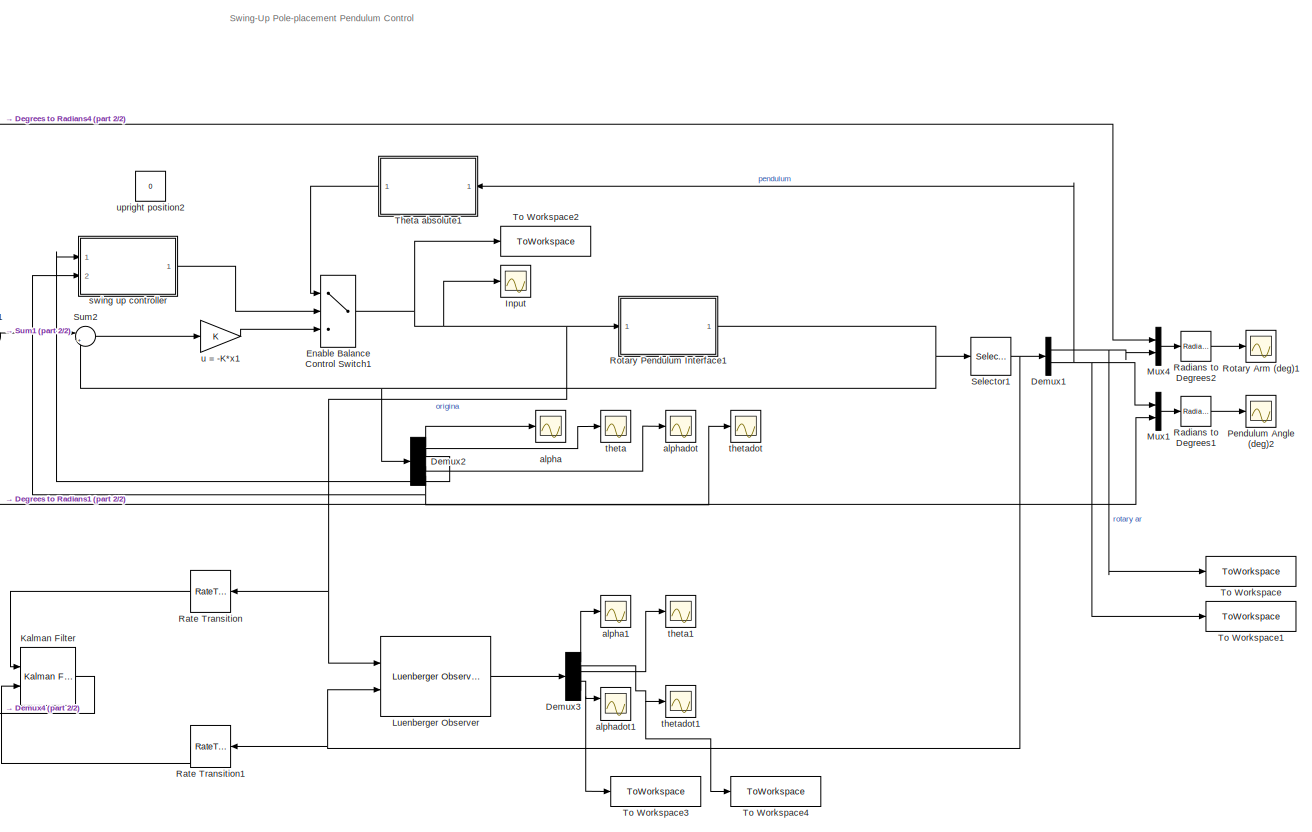
[diagram: root canvas - part 1/2, center side, full height]
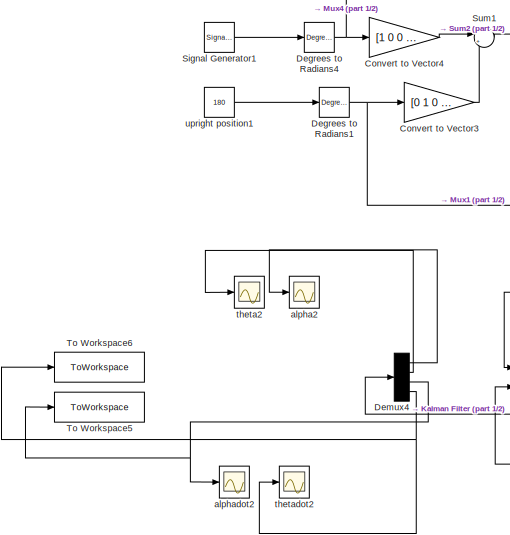
[diagram: root canvas - part 2/2, bottom left region]
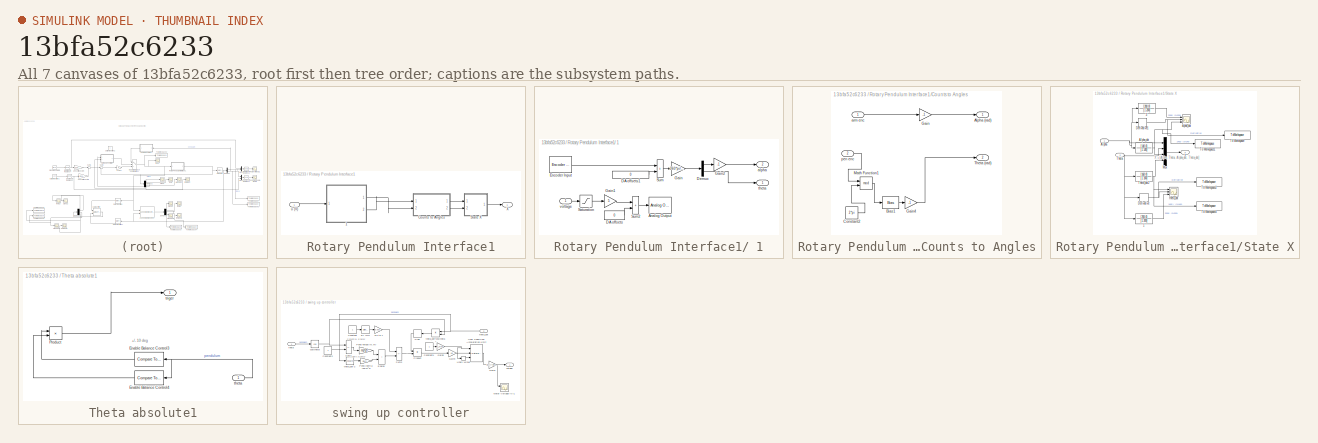
[diagram: thumbnail index - all 7 canvases of the model, root first then tree order]
MODEL slx_13bfa52c6233
KIND model
CONFIG AbsTol = auto
CONFIG EnableMultiTasking = on
CONFIG FixedStep = 0.01
CONFIG MaxStep = auto
CONFIG MinStep = auto
CONFIG RelTol = 1e-3
CONFIG SampleTimeConstraint = Unconstrained
CONFIG SolverName = ode1
CONFIG StartTime = 0.0
CONFIG StopTime = 40
BLOCK [Gain] Convert to Vector3
  Gain = [0 1 0 0]
BLOCK [Gain] Convert to Vector4
  Gain = [1 0 0 0]
BLOCK [Reference] Degrees to Radians1  REF=simulink_extras/Transformations/Degrees to
Radians
  Ports = [1, 1]
  SourceBlock = simulink_extras/Transformations/Degrees to\nRadians
  SourceProductBaseCode = SL
  SourceType = DegreesToRadians
BLOCK [Reference] Degrees to Radians4  REF=simulink_extras/Transformations/Degrees to
Radians
  Ports = [1, 1]
  SourceBlock = simulink_extras/Transformations/Degrees to\nRadians
  SourceProductBaseCode = SL
  SourceType = DegreesToRadians
BLOCK [Demux] Demux1
  Outputs = 2
  Ports = [1, 2]
BLOCK [Demux] Demux2
  Ports = [1, 4]
BLOCK [Demux] Demux3
  Ports = [1, 4]
BLOCK [Demux] Demux4
  Ports = [1, 4]
BLOCK [MultiPortSwitch] Enable Balance Control Switch1
  DataPortOrder = Zero-based contiguous
  InputSameDT = off
  Inputs = 2
  Ports = [3, 1]
  SaturateOnIntegerOverflow = off
  zeroidx = on
BLOCK [Scope] Input 
  Floating = off
  NumInputPorts = 1
  Ports = [1]
  ScopeSpecificationString = Simulink.scopes.TimeScopeBlockCfg('CurrentConfiguration', extmgr.ConfigurationSet(extmgr.Configuration('Core','General UI',true),extmgr.Configuration('Core','Source UI',true),extmgr.Configuration('Sources','WiredSimulink',true,'DataLoggingVariableName','ScopeData1'),extmgr.Configuration('Visuals','Time Domain',true,'SerializedDisplays',{struct('MinYLimReal','-2.19929','MaxYLimReal','3.16032','YLab...<+1500ch>
BLOCK [Reference] Kalman Filter  REF=ctrlSharedLib/Kalman Filter
  Ports = [2, 1]
  SourceBlock = ctrlSharedLib/Kalman Filter
  SourceProductBaseCode = CT,ID
  SourceType = ctrlKalmanFilter
BLOCK [Reference] Luenberger Observer  REF=eeLuenbergerObserver/Luenberger Observer
  Ports = [2, 1]
  SourceBlock = eeLuenbergerObserver/Luenberger Observer
  SourceProductBaseCode = PS
  SourceType = Luenberger Observer
BLOCK [Mux] Mux1
  DisplayOption = bar
  Inputs = 2
  Ports = [2, 1]
BLOCK [Mux] Mux4
  DisplayOption = bar
  Inputs = 2
  Ports = [2, 1]
BLOCK [Scope] Pendulum Angle (deg)2
  Floating = off
  NumInputPorts = 1
  Ports = [1]
  ScopeSpecificationString = Simulink.scopes.TimeScopeBlockCfg('CurrentConfiguration', extmgr.ConfigurationSet(extmgr.Configuration('Core','General UI',true),extmgr.Configuration('Core','Source UI',true),extmgr.Configuration('Sources','WiredSimulink',true,'DataLoggingVariableName','ScopeData3'),extmgr.Configuration('Visuals','Time Domain',true,'SerializedDisplays',{struct('MinYLimReal','-40.60547','MaxYLimReal','404.12109','Y...<+1500ch>
BLOCK [Reference] Radians to Degrees1  REF=simulink_extras/Transformations/Radians
to Degrees
  Ports = [1, 1]
  SourceBlock = simulink_extras/Transformations/Radians\nto Degrees
  SourceProductBaseCode = SL
  SourceType = RadiansToDegrees
BLOCK [Reference] Radians to Degrees2  REF=simulink_extras/Transformations/Radians
to Degrees
  Ports = [1, 1]
  SourceBlock = simulink_extras/Transformations/Radians\nto Degrees
  SourceProductBaseCode = SL
  SourceType = RadiansToDegrees
BLOCK [RateTransition] Rate Transition
BLOCK [RateTransition] Rate Transition1
BLOCK [Scope] Rotary Arm (deg)1
  Floating = off
  NumInputPorts = 1
  Ports = [1]
  ScopeSpecificationString = Simulink.scopes.TimeScopeBlockCfg('CurrentConfiguration', extmgr.ConfigurationSet(extmgr.Configuration('Core','General UI',true),extmgr.Configuration('Core','Source UI',true),extmgr.Configuration('Sources','WiredSimulink',true,'DataLoggingVariableName','ScopeData4'),extmgr.Configuration('Visuals','Time Domain',true,'SerializedDisplays',{struct('MinYLimReal','-49.43115','MaxYLimReal','38.82568','YL...<+1575ch>
BLOCK [SubSystem] Rotary Pendulum Interface1
  Ports = [1, 1]
  RequestExecContextInheritance = off
BLOCK [SubSystem] Rotary Pendulum Interface1/ 1
  InitFcn = hwinit
  LoadFcn = hwinit
  NameLocation = top
  Ports = [1, 2]
  RequestExecContextInheritance = off
  ShowPortLabels = none
BLOCK [Reference] Rotary Pendulum Interface1/ 1/Analog Output  REF=sldrtlib/Analog Output
  AttributesFormatString = Humusoft\nMF634 [auto]
  Ports = [1]
  SourceBlock = sldrtlib/Analog Output
  SourceProductBaseCode = WT
  SourceType = Simulink Desktop Real-Time Analog Output
BLOCK [Constant] Rotary Pendulum Interface1/ 1/DA offsets
  Value = 0
BLOCK [Constant] Rotary Pendulum Interface1/ 1/DA offsets1
  SampleTime = h
  Value = 0
BLOCK [Demux] Rotary Pendulum Interface1/ 1/Demux
  Outputs = 2
  Ports = [1, 2]
BLOCK [Reference] Rotary Pendulum Interface1/ 1/Encoder Input  REF=sldrtlib/Encoder Input
  AttributesFormatString = Humusoft\nMF634 [auto]
  Ports = [0, 1]
  SourceBlock = sldrtlib/Encoder Input
  SourceProductBaseCode = WT
  SourceType = Simulink Desktop Real-Time Encoder Input
BLOCK [Gain] Rotary Pendulum Interface1/ 1/Gain
  Gain = 360*pi/(180*512*4)
  OutDataTypeStr = Inherit: Same as input
  ParamDataTypeStr = Inherit: Same as input
  SaturateOnIntegerOverflow = on
BLOCK [Gain] Rotary Pendulum Interface1/ 1/Gain1
  Gain = 5
  OutDataTypeStr = Inherit: Same as input
  ParamDataTypeStr = Inherit: Same as input
  SaturateOnIntegerOverflow = on
BLOCK [Gain] Rotary Pendulum Interface1/ 1/Gain2
  Gain = -1
  OutDataTypeStr = Inherit: Same as input
  ParamDataTypeStr = Inherit: Same as input
  SaturateOnIntegerOverflow = on
BLOCK [Saturate] Rotary Pendulum Interface1/ 1/Saturation
  LowerLimit = -1
  UpperLimit = 1
BLOCK [Sum] Rotary Pendulum Interface1/ 1/Sum
  IconShape = rectangular
  InputSameDT = on
  OutDataTypeStr = Inherit: Same as first input
  Ports = [2, 1]
  SaturateOnIntegerOverflow = on
BLOCK [Sum] Rotary Pendulum Interface1/ 1/Sum2
  IconShape = rectangular
  InputSameDT = on
  OutDataTypeStr = Inherit: Same as first input
  Ports = [2, 1]
  SaturateOnIntegerOverflow = on
BLOCK [Outport] Rotary Pendulum Interface1/ 1/alpha
  Port = 2
  Tag = Cable length
BLOCK [Outport] Rotary Pendulum Interface1/ 1/theta
  Tag = Cable length
BLOCK [Inport] Rotary Pendulum Interface1/ 1/voltage
BLOCK [SubSystem] Rotary Pendulum Interface1/Counts to Angles
  Ports = [2, 2]
  RequestExecContextInheritance = off
BLOCK [Outport] Rotary Pendulum Interface1/Counts to Angles/Alpha (rad)
  VectorParamsAs1DForOutWhenUnconnected = off
BLOCK [Bias] Rotary Pendulum Interface1/Counts to Angles/Bias1
  Bias = -2*pi
  SaturateOnIntegerOverflow = off
BLOCK [Constant] Rotary Pendulum Interface1/Counts to Angles/Constant2
  Value = 2*pi
BLOCK [Gain] Rotary Pendulum Interface1/Counts to Angles/Gain
  Gain = -1
BLOCK [Gain] Rotary Pendulum Interface1/Counts to Angles/Gain4
  Gain = -1
BLOCK [Math] Rotary Pendulum Interface1/Counts to Angles/Math Function1
  Operator = mod
  Ports = [2, 1]
  SignedPower = on
BLOCK [Outport] Rotary Pendulum Interface1/Counts to Angles/Theta (rad)
  Port = 2
  VectorParamsAs1DForOutWhenUnconnected = off
BLOCK [Inport] Rotary Pendulum Interface1/Counts to Angles/arm enc
BLOCK [Inport] Rotary Pendulum Interface1/Counts to Angles/pen enc
  Port = 2
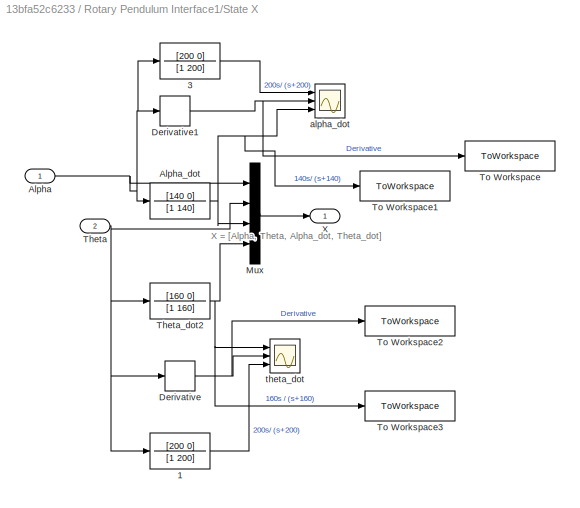
BLOCK [SubSystem] Rotary Pendulum Interface1/State X
  Ports = [2, 1]
  RequestExecContextInheritance = off
BLOCK [TransferFcn] Rotary Pendulum Interface1/State X/1
  Denominator = [1 200]
  Numerator = [200 0]
BLOCK [TransferFcn] Rotary Pendulum Interface1/State X/3
  Denominator = [1 200]
  Numerator = [200 0]
BLOCK [Inport] Rotary Pendulum Interface1/State X/Alpha
BLOCK [TransferFcn] Rotary Pendulum Interface1/State X/Alpha_dot
  Denominator = [1 140]
  Numerator = [140 0]
BLOCK [Derivative] Rotary Pendulum Interface1/State X/Derivative
BLOCK [Derivative] Rotary Pendulum Interface1/State X/Derivative1
BLOCK [Mux] Rotary Pendulum Interface1/State X/Mux
  DisplayOption = bar
  Ports = [4, 1]
BLOCK [Inport] Rotary Pendulum Interface1/State X/Theta
  Port = 2
BLOCK [TransferFcn] Rotary Pendulum Interface1/State X/Theta_dot2
  Denominator = [1 160]
  Numerator = [160 0]
BLOCK [ToWorkspace] Rotary Pendulum Interface1/State X/To Workspace
  Decimation = 2
  FixptAsFi = on
  MaxDataPoints = inf
  Ports = [1]
  SampleTime = h
  SaveFormat = Timeseries
  VariableName = derivative
BLOCK [ToWorkspace] Rotary Pendulum Interface1/State X/To Workspace1
  Decimation = 2
  FixptAsFi = on
  MaxDataPoints = inf
  Ports = [1]
  SampleTime = h
  SaveFormat = Timeseries
  VariableName = alpha140
BLOCK [ToWorkspace] Rotary Pendulum Interface1/State X/To Workspace2
  Decimation = 2
  FixptAsFi = on
  MaxDataPoints = inf
  Ports = [1]
  SampleTime = h
  SaveFormat = Timeseries
  VariableName = thetaderivative
BLOCK [ToWorkspace] Rotary Pendulum Interface1/State X/To Workspace3
  Decimation = 2
  FixptAsFi = on
  MaxDataPoints = inf
  Ports = [1]
  SampleTime = h
  SaveFormat = Timeseries
  VariableName = theta160
BLOCK [Outport] Rotary Pendulum Interface1/State X/X
  VectorParamsAs1DForOutWhenUnconnected = off
BLOCK [Scope] Rotary Pendulum Interface1/State X/alpha_dot
  Floating = off
  NumInputPorts = 3
  Ports = [3]
  ScopeSpecificationString = Simulink.scopes.TimeScopeBlockCfg('CurrentConfiguration', extmgr.ConfigurationSet(extmgr.Configuration('Core','General UI',true),extmgr.Configuration('Core','Source UI',true),extmgr.Configuration('Sources','WiredSimulink',true,'DataLoggingVariableName','ScopeData2'),extmgr.Configuration('Visuals','Time Domain',true,'SerializedDisplays',{struct('MinYLimReal','-1.32082','MaxYLimReal','0.63373','YLab...<+1514ch>
BLOCK [Scope] Rotary Pendulum Interface1/State X/theta_dot
  Floating = off
  NumInputPorts = 3
  Ports = [3]
  ScopeSpecificationString = Simulink.scopes.TimeScopeBlockCfg('CurrentConfiguration', extmgr.ConfigurationSet(extmgr.Configuration('Core','General UI',true),extmgr.Configuration('Core','Source UI',true),extmgr.Configuration('Sources','WiredSimulink',true,'DataLoggingVariableName','ScopeData1'),extmgr.Configuration('Visuals','Time Domain',true,'SerializedDisplays',{struct('MinYLimReal','-1571.48662','MaxYLimReal','1570.87303'...<+1537ch>
BLOCK [Outport] Rotary Pendulum Interface1/X
  VectorParamsAs1DForOutWhenUnconnected = off
BLOCK [Inport] Rotary Pendulum Interface1/u (V)
BLOCK [Selector] Selector1
  IndexOptions = Index vector (dialog)
  Indices = [1 2]
  InputPortWidth = 4
  OutputSizes = 1
  Ports = [1, 1]
BLOCK [SignalGenerator] Signal Generator1
  Amplitude = 20
  Frequency = 0.5
  Ports = [0, 1]
  Units = rad/sec
  WaveForm = square
BLOCK [Sum] Sum1
  Inputs = |++
  Ports = [2, 1]
BLOCK [Sum] Sum2
  Inputs = |+-
  Ports = [2, 1]
BLOCK [SubSystem] Theta absolute1
  Ports = [1, 1]
  RequestExecContextInheritance = off
BLOCK [Reference] Theta absolute1/Enable Balance Control3  REF=simulink/Logic and Bit
Operations/Compare
To Constant
  Ports = [1, 1]
  SourceBlock = simulink/Logic and Bit\nOperations/Compare\nTo Constant
  SourceProductBaseCode = SL
  SourceType = Compare To Constant
BLOCK [Reference] Theta absolute1/Enable Balance Control4  REF=simulink/Logic and Bit
Operations/Compare
To Constant
  Ports = [1, 1]
  SourceBlock = simulink/Logic and Bit\nOperations/Compare\nTo Constant
  SourceProductBaseCode = SL
  SourceType = Compare To Constant
BLOCK [Product] Theta absolute1/Product
  Ports = [2, 1]
BLOCK [Inport] Theta absolute1/theta
BLOCK [Outport] Theta absolute1/triger
  VectorParamsAs1DForOutWhenUnconnected = off
BLOCK [ToWorkspace] To Workspace
  Decimation = 2
  FixptAsFi = on
  MaxDataPoints = inf
  Ports = [1]
  SampleTime = h
  SaveFormat = Timeseries
  VariableName = alphadata
BLOCK [ToWorkspace] To Workspace1
  Decimation = 2
  FixptAsFi = on
  MaxDataPoints = inf
  Ports = [1]
  SampleTime = h
  SaveFormat = Timeseries
  VariableName = thetadata
BLOCK [ToWorkspace] To Workspace2
  Decimation = 2
  FixptAsFi = on
  MaxDataPoints = inf
  Ports = [1]
  SampleTime = h
  SaveFormat = Timeseries
  VariableName = input
BLOCK [ToWorkspace] To Workspace3
  Decimation = 2
  FixptAsFi = on
  MaxDataPoints = inf
  Ports = [1]
  SampleTime = h
  SaveFormat = Timeseries
  VariableName = luenalpha
BLOCK [ToWorkspace] To Workspace4
  Decimation = 2
  FixptAsFi = on
  MaxDataPoints = inf
  Ports = [1]
  SampleTime = h
  SaveFormat = Timeseries
  VariableName = luentheta
BLOCK [ToWorkspace] To Workspace5
  Decimation = 2
  FixptAsFi = on
  MaxDataPoints = inf
  Ports = [1]
  SampleTime = h
  SaveFormat = Timeseries
  VariableName = kalmanalpha
BLOCK [ToWorkspace] To Workspace6
  Decimation = 2
  FixptAsFi = on
  MaxDataPoints = inf
  Ports = [1]
  SampleTime = h
  SaveFormat = Timeseries
  VariableName = kalmantheta
BLOCK [Scope] alpha
  Floating = off
  NumInputPorts = 1
  Ports = [1]
  ScopeSpecificationString = Simulink.scopes.TimeScopeBlockCfg('CurrentConfiguration', extmgr.ConfigurationSet(extmgr.Configuration('Core','General UI',true),extmgr.Configuration('Core','Source UI',true),extmgr.Configuration('Sources','WiredSimulink',true,'DataLoggingVariableName','ScopeData6'),extmgr.Configuration('Visuals','Time Domain',true,'SerializedDisplays',{struct('MinYLimReal','-2.68447','MaxYLimReal','3.26738','YLab...<+1499ch>
BLOCK [Scope] alpha1
  Floating = off
  NumInputPorts = 1
  Ports = [1]
  ScopeSpecificationString = Simulink.scopes.TimeScopeBlockCfg('CurrentConfiguration', extmgr.ConfigurationSet(extmgr.Configuration('Core','General UI',true),extmgr.Configuration('Core','Source UI',true),extmgr.Configuration('Sources','WiredSimulink',true,'DataLoggingVariableName','ScopeData1'),extmgr.Configuration('Visuals','Time Domain',true,'SerializedDisplays',{struct('MinYLimReal','-2.68447','MaxYLimReal','3.26738','YLab...<+1499ch>
BLOCK [Scope] alpha2
  Floating = off
  NumInputPorts = 1
  Ports = [1]
  ScopeSpecificationString = Simulink.scopes.TimeScopeBlockCfg('CurrentConfiguration', extmgr.ConfigurationSet(extmgr.Configuration('Core','General UI',true),extmgr.Configuration('Core','Source UI',true),extmgr.Configuration('Sources','WiredSimulink',true,'DataLoggingVariableName','ScopeData5'),extmgr.Configuration('Visuals','Time Domain',true,'SerializedDisplays',{struct('MinYLimReal','-2.68447','MaxYLimReal','3.26738','YLab...<+1499ch>
BLOCK [Scope] alphadot
  Floating = off
  NumInputPorts = 1
  Ports = [1]
  ScopeSpecificationString = Simulink.scopes.TimeScopeBlockCfg('CurrentConfiguration', extmgr.ConfigurationSet(extmgr.Configuration('Core','General UI',true),extmgr.Configuration('Core','Source UI',true),extmgr.Configuration('Sources','WiredSimulink',true,'DataLoggingVariableName','ScopeData7'),extmgr.Configuration('Visuals','Time Domain',true,'SerializedDisplays',{struct('MinYLimReal','-1.71372','MaxYLimReal','1.12685','YLab...<+1499ch>
BLOCK [Scope] alphadot1
  Floating = off
  NumInputPorts = 2
  Ports = [2]
  ScopeSpecificationString = Simulink.scopes.TimeScopeBlockCfg('CurrentConfiguration', extmgr.ConfigurationSet(extmgr.Configuration('Core','General UI',true),extmgr.Configuration('Core','Source UI',true),extmgr.Configuration('Sources','WiredSimulink',true,'DataLoggingVariableName','ScopeData2'),extmgr.Configuration('Visuals','Time Domain',true,'SerializedDisplays',{struct('MinYLimReal','-1.71372','MaxYLimReal','1.12685','YLab...<+1499ch>
BLOCK [Scope] alphadot2
  Floating = off
  NumInputPorts = 1
  Ports = [1]
  ScopeSpecificationString = Simulink.scopes.TimeScopeBlockCfg('CurrentConfiguration', extmgr.ConfigurationSet(extmgr.Configuration('Core','General UI',true),extmgr.Configuration('Core','Source UI',true),extmgr.Configuration('Sources','WiredSimulink',true,'DataLoggingVariableName','ScopeData6'),extmgr.Configuration('Visuals','Time Domain',true,'SerializedDisplays',{struct('MinYLimReal','-1.71372','MaxYLimReal','1.12685','YLab...<+1499ch>
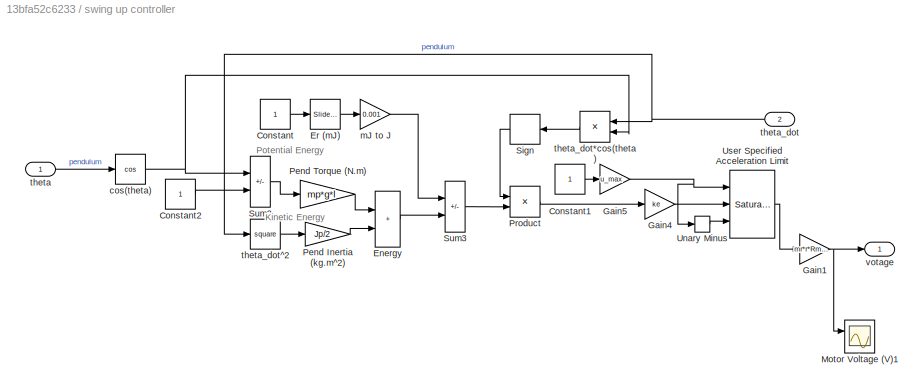
BLOCK [SubSystem] swing up controller
  Ports = [2, 1]
  RequestExecContextInheritance = off
BLOCK [Constant] swing up controller/Constant
BLOCK [Constant] swing up controller/Constant1
BLOCK [Constant] swing up controller/Constant2
BLOCK [Sum] swing up controller/Energy
  IconShape = rectangular
  Ports = [2, 1]
  SaturateOnIntegerOverflow = on
BLOCK [Reference] swing up controller/Er (mJ)  REF=simulink/Math
Operations/Slider
Gain
  Ports = [1, 1]
  SourceBlock = simulink/Math\nOperations/Slider\nGain
  SourceProductBaseCode = SL
  SourceType = Slider Gain
BLOCK [Gain] swing up controller/Gain1
  Gain = mr*r*Rm/kt
BLOCK [Gain] swing up controller/Gain4
  Gain = ke
BLOCK [Gain] swing up controller/Gain5
  Gain = u_max
BLOCK [Scope] swing up controller/Motor Voltage (V)1
  Floating = off
  NumInputPorts = 2
  Ports = [2]
  ScopeSpecificationString = Simulink.scopes.TimeScopeBlockCfg('CurrentConfiguration', extmgr.ConfigurationSet(extmgr.Configuration('Core','General UI',true),extmgr.Configuration('Core','Source UI',true),extmgr.Configuration('Sources','WiredSimulink',true,'DataLoggingSaveFormat','StructureWithTime','DataLoggingLimitDataPoints',true,'DataLoggingDecimation','1','DataLoggingDecimateData',true,'DataLoggingVariableName','ScopeData...<+1823ch>
BLOCK [Gain] swing up controller/Pend Inertia (kg.m^2)
  Gain = Jp/2
BLOCK [Gain] swing up controller/Pend Torque (N.m)
  Gain = mp*g*l
BLOCK [Product] swing up controller/Product
  Ports = [2, 1]
  RndMeth = Zero
BLOCK [Signum] swing up controller/Sign
BLOCK [Sum] swing up controller/Sum2
  IconShape = rectangular
  Inputs = -+
  Ports = [2, 1]
  SaturateOnIntegerOverflow = on
BLOCK [Sum] swing up controller/Sum3
  IconShape = rectangular
  Inputs = +-
  Ports = [2, 1]
  SaturateOnIntegerOverflow = on
BLOCK [UnaryMinus] swing up controller/Unary Minus
BLOCK [Reference] swing up controller/User Specified Acceleration Limit  REF=simulink/Discontinuities/Saturation
Dynamic
  Ports = [3, 1]
  SourceBlock = simulink/Discontinuities/Saturation\nDynamic
  SourceProductBaseCode = SL
  SourceType = Saturation Dynamic
BLOCK [Trigonometry] swing up controller/cos(theta)
  Operator = cos
  Ports = [1, 1]
BLOCK [Gain] swing up controller/mJ to J
  Gain = 0.001
BLOCK [Inport] swing up controller/theta
BLOCK [Inport] swing up controller/theta_dot
  Port = 2
BLOCK [Product] swing up controller/theta_dot*cos(theta)
  Ports = [2, 1]
  RndMeth = Zero
BLOCK [Math] swing up controller/theta_dot^2
  Operator = square
  Ports = [1, 1]
  SignedPower = on
BLOCK [Outport] swing up controller/votage
  VectorParamsAs1DForOutWhenUnconnected = off
BLOCK [Scope] theta
  Floating = off
  NumInputPorts = 1
  Ports = [1]
  ScopeSpecificationString = Simulink.scopes.TimeScopeBlockCfg('CurrentConfiguration', extmgr.ConfigurationSet(extmgr.Configuration('Core','General UI',true),extmgr.Configuration('Core','Source UI',true),extmgr.Configuration('Sources','WiredSimulink',true,'DataLoggingVariableName','ScopeData8'),extmgr.Configuration('Visuals','Time Domain',true,'SerializedDisplays',{struct('MinYLimReal','-0.78195','MaxYLimReal','7.0682','YLabe...<+1495ch>
BLOCK [Scope] theta1
  Floating = off
  NumInputPorts = 1
  Ports = [1]
  ScopeSpecificationString = Simulink.scopes.TimeScopeBlockCfg('CurrentConfiguration', extmgr.ConfigurationSet(extmgr.Configuration('Core','General UI',true),extmgr.Configuration('Core','Source UI',true),extmgr.Configuration('Sources','WiredSimulink',true,'DataLoggingVariableName','ScopeData3'),extmgr.Configuration('Visuals','Time Domain',true,'SerializedDisplays',{struct('MinYLimReal','-0.78195','MaxYLimReal','7.0682','YLabe...<+1495ch>
BLOCK [Scope] theta2
  Floating = off
  NumInputPorts = 1
  Ports = [1]
  ScopeSpecificationString = Simulink.scopes.TimeScopeBlockCfg('CurrentConfiguration', extmgr.ConfigurationSet(extmgr.Configuration('Core','General UI',true),extmgr.Configuration('Core','Source UI',true),extmgr.Configuration('Sources','WiredSimulink',true,'DataLoggingVariableName','ScopeData7'),extmgr.Configuration('Visuals','Time Domain',true,'SerializedDisplays',{struct('MinYLimReal','-0.78195','MaxYLimReal','7.0682','YLabe...<+1495ch>
BLOCK [Scope] thetadot
  Floating = off
  NumInputPorts = 1
  Ports = [1]
  ScopeSpecificationString = Simulink.scopes.TimeScopeBlockCfg('CurrentConfiguration', extmgr.ConfigurationSet(extmgr.Configuration('Core','General UI',true),extmgr.Configuration('Core','Source UI',true),extmgr.Configuration('Sources','WiredSimulink',true,'DataLoggingVariableName','ScopeData9'),extmgr.Configuration('Visuals','Time Domain',true,'SerializedDisplays',{struct('MinYLimReal','-0.7854','MaxYLimReal','7.06858','YLabe...<+1497ch>
BLOCK [Scope] thetadot1
  Floating = off
  NumInputPorts = 1
  Ports = [1]
  ScopeSpecificationString = Simulink.scopes.TimeScopeBlockCfg('CurrentConfiguration', extmgr.ConfigurationSet(extmgr.Configuration('Core','General UI',true),extmgr.Configuration('Core','Source UI',true),extmgr.Configuration('Sources','WiredSimulink',true,'DataLoggingVariableName','ScopeData4'),extmgr.Configuration('Visuals','Time Domain',true,'SerializedDisplays',{struct('MinYLimReal','-0.7854','MaxYLimReal','7.06858','YLabe...<+1497ch>
BLOCK [Scope] thetadot2
  Floating = off
  NumInputPorts = 1
  Ports = [1]
  ScopeSpecificationString = Simulink.scopes.TimeScopeBlockCfg('CurrentConfiguration', extmgr.ConfigurationSet(extmgr.Configuration('Core','General UI',true),extmgr.Configuration('Core','Source UI',true),extmgr.Configuration('Sources','WiredSimulink',true,'DataLoggingVariableName','ScopeData8'),extmgr.Configuration('Visuals','Time Domain',true,'SerializedDisplays',{struct('MinYLimReal','-0.7854','MaxYLimReal','7.06858','YLabe...<+1497ch>
BLOCK [Gain] u = -K*x1
  Gain = K
  Multiplication = Matrix(K*u)
BLOCK [Constant] upright position1
  SampleTime = 0
  Value = 180
BLOCK [Constant] upright position2
  SampleTime = 0
  Value = 0
ANNOTATION (root): Swing-Up Pole-placement Pendulum Control
ANNOTATION Rotary Pendulum Interface1/State X: X = [Alpha, Theta, Alpha_dot, Theta_dot]
ANNOTATION Theta absolute1: +/- 10 deg
ANNOTATION swing up controller: Kinetic Energy
ANNOTATION swing up controller: Potential Energy
LINE Convert to Vector3:1 -> Sum1:2
LINE Convert to Vector4:1 -> Sum1:1
NET Degrees to Radians1:1 -> Convert to Vector3:1, Mux1:2
NET Degrees to Radians4:1 -> Convert to Vector4:1, Mux4:1
NET Demux1:1 -> Mux4:2, To Workspace:1
NET Demux1:2 -> Mux1:1, Theta absolute1:1, To Workspace1:1
LINE Demux2:1 -> alpha:1
NET Demux2:2 -> swing up controller:1, theta:1
LINE Demux2:3 -> alphadot:1
NET Demux2:4 -> swing up controller:2, thetadot:1
LINE Demux3:1 -> alpha1:1
LINE Demux3:2 -> theta1:1
NET Demux3:3 -> To Workspace3:1, alphadot1:1
NET Demux3:4 -> To Workspace4:1, thetadot1:1
LINE Demux4:1 -> alpha2:1
LINE Demux4:2 -> theta2:1
NET Demux4:3 -> To Workspace5:1, alphadot2:1
NET Demux4:4 -> To Workspace6:1, thetadot2:1
NET Enable Balance Control Switch1:1 -> Input :1, Luenberger Observer:1, Rate Transition:1, Rotary Pendulum Interface1:1, To Workspace2:1
LINE Kalman Filter:1 -> Demux4:1
LINE Luenberger Observer:1 -> Demux3:1
LINE Mux1:1 -> Radians to Degrees1:1
LINE Mux4:1 -> Radians to Degrees2:1
LINE Radians to Degrees1:1 -> Pendulum Angle (deg)2:1
LINE Radians to Degrees2:1 -> Rotary Arm (deg)1:1
LINE Rate Transition1:1 -> Kalman Filter:2
LINE Rate Transition:1 -> Kalman Filter:1
LINE Rotary Pendulum Interface1/ 1/DA offsets1:1 -> Rotary Pendulum Interface1/ 1/Sum:2
LINE Rotary Pendulum Interface1/ 1/DA offsets:1 -> Rotary Pendulum Interface1/ 1/Sum2:2
LINE Rotary Pendulum Interface1/ 1/Demux:1 -> Rotary Pendulum Interface1/ 1/Gain2:1
LINE Rotary Pendulum Interface1/ 1/Demux:2 -> Rotary Pendulum Interface1/ 1/theta:1
LINE Rotary Pendulum Interface1/ 1/Encoder Input:1 -> Rotary Pendulum Interface1/ 1/Sum:1
LINE Rotary Pendulum Interface1/ 1/Gain1:1 -> Rotary Pendulum Interface1/ 1/Sum2:1
LINE Rotary Pendulum Interface1/ 1/Gain2:1 -> Rotary Pendulum Interface1/ 1/alpha:1
LINE Rotary Pendulum Interface1/ 1/Gain:1 -> Rotary Pendulum Interface1/ 1/Demux:1
LINE Rotary Pendulum Interface1/ 1/Saturation:1 -> Rotary Pendulum Interface1/ 1/Gain1:1
LINE Rotary Pendulum Interface1/ 1/Sum2:1 -> Rotary Pendulum Interface1/ 1/Analog Output:1
LINE Rotary Pendulum Interface1/ 1/Sum:1 -> Rotary Pendulum Interface1/ 1/Gain:1
LINE Rotary Pendulum Interface1/ 1/voltage:1 -> Rotary Pendulum Interface1/ 1/Saturation:1
LINE Rotary Pendulum Interface1/ 1:1 -> Rotary Pendulum Interface1/Counts to Angles:2
LINE Rotary Pendulum Interface1/ 1:2 -> Rotary Pendulum Interface1/Counts to Angles:1
LINE Rotary Pendulum Interface1/Counts to Angles/Bias1:1 -> Rotary Pendulum Interface1/Counts to Angles/Gain4:1
LINE Rotary Pendulum Interface1/Counts to Angles/Constant2:1 -> Rotary Pendulum Interface1/Counts to Angles/Math Function1:2
LINE Rotary Pendulum Interface1/Counts to Angles/Gain4:1 -> Rotary Pendulum Interface1/Counts to Angles/Theta (rad):1
LINE Rotary Pendulum Interface1/Counts to Angles/Gain:1 -> Rotary Pendulum Interface1/Counts to Angles/Alpha (rad):1
LINE Rotary Pendulum Interface1/Counts to Angles/Math Function1:1 -> Rotary Pendulum Interface1/Counts to Angles/Bias1:1
LINE Rotary Pendulum Interface1/Counts to Angles/arm enc:1 -> Rotary Pendulum Interface1/Counts to Angles/Gain:1
LINE Rotary Pendulum Interface1/Counts to Angles/pen enc:1 -> Rotary Pendulum Interface1/Counts to Angles/Math Function1:1
LINE Rotary Pendulum Interface1/Counts to Angles:1 -> Rotary Pendulum Interface1/State X:1
LINE Rotary Pendulum Interface1/Counts to Angles:2 -> Rotary Pendulum Interface1/State X:2
LINE Rotary Pendulum Interface1/State X/1:1 -> Rotary Pendulum Interface1/State X/theta_dot:3
LINE Rotary Pendulum Interface1/State X/3:1 -> Rotary Pendulum Interface1/State X/alpha_dot:1
NET Rotary Pendulum Interface1/State X/Alpha:1 -> Rotary Pendulum Interface1/State X/3:1, Rotary Pendulum Interface1/State X/Alpha_dot:1, Rotary Pendulum Interface1/State X/Derivative1:1, Rotary Pendulum Interface1/State X/Mux:1
NET Rotary Pendulum Interface1/State X/Alpha_dot:1 -> Rotary Pendulum Interface1/State X/Mux:3, Rotary Pendulum Interface1/State X/To Workspace1:1, Rotary Pendulum Interface1/State X/alpha_dot:3
NET Rotary Pendulum Interface1/State X/Derivative1:1 -> Rotary Pendulum Interface1/State X/To Workspace:1, Rotary Pendulum Interface1/State X/alpha_dot:2
NET Rotary Pendulum Interface1/State X/Derivative:1 -> Rotary Pendulum Interface1/State X/To Workspace2:1, Rotary Pendulum Interface1/State X/theta_dot:2
LINE Rotary Pendulum Interface1/State X/Mux:1 -> Rotary Pendulum Interface1/State X/X:1
NET Rotary Pendulum Interface1/State X/Theta:1 -> Rotary Pendulum Interface1/State X/1:1, Rotary Pendulum Interface1/State X/Derivative:1, Rotary Pendulum Interface1/State X/Mux:2, Rotary Pendulum Interface1/State X/Theta_dot2:1
NET Rotary Pendulum Interface1/State X/Theta_dot2:1 -> Rotary Pendulum Interface1/State X/Mux:4, Rotary Pendulum Interface1/State X/To Workspace3:1, Rotary Pendulum Interface1/State X/theta_dot:1
LINE Rotary Pendulum Interface1/State X:1 -> Rotary Pendulum Interface1/X:1
LINE Rotary Pendulum Interface1/u (V):1 -> Rotary Pendulum Interface1/ 1:1
NET Rotary Pendulum Interface1:1 -> Demux2:1, Selector1:1, Sum2:2
NET Selector1:1 -> Demux1:1, Luenberger Observer:2, Rate Transition1:1
LINE Signal Generator1:1 -> Degrees to Radians4:1
LINE Sum1:1 -> Sum2:1
LINE Sum2:1 -> u = -K*x1:1
LINE Theta absolute1/Enable Balance Control3:1 -> Theta absolute1/Product:1
LINE Theta absolute1/Enable Balance Control4:1 -> Theta absolute1/Product:2
LINE Theta absolute1/Product:1 -> Theta absolute1/triger:1
NET Theta absolute1/theta:1 -> Theta absolute1/Enable Balance Control3:1, Theta absolute1/Enable Balance Control4:1
LINE Theta absolute1:1 -> Enable Balance Control Switch1:1
LINE swing up controller/Constant1:1 -> swing up controller/Gain5:1
LINE swing up controller/Constant2:1 -> swing up controller/Sum2:2
LINE swing up controller/Constant:1 -> swing up controller/Er (mJ):1
LINE swing up controller/Energy:1 -> swing up controller/Sum3:2
LINE swing up controller/Er (mJ):1 -> swing up controller/mJ to J:1
NET swing up controller/Gain1:1 -> swing up controller/Motor Voltage (V)1:1, swing up controller/votage:1
LINE swing up controller/Gain4:1 -> swing up controller/User Specified Acceleration Limit:2
NET swing up controller/Gain5:1 -> swing up controller/Unary Minus:1, swing up controller/User Specified Acceleration Limit:1
LINE swing up controller/Pend Inertia (kg.m^2):1 -> swing up controller/Energy:2
LINE swing up controller/Pend Torque (N.m):1 -> swing up controller/Energy:1
LINE swing up controller/Product:1 -> swing up controller/Gain4:1
LINE swing up controller/Sign:1 -> swing up controller/Product:1
LINE swing up controller/Sum2:1 -> swing up controller/Pend Torque (N.m):1
LINE swing up controller/Sum3:1 -> swing up controller/Product:2
LINE swing up controller/Unary Minus:1 -> swing up controller/User Specified Acceleration Limit:3
LINE swing up controller/User Specified Acceleration Limit:1 -> swing up controller/Gain1:1
NET swing up controller/cos(theta):1 -> swing up controller/Sum2:1, swing up controller/theta_dot*cos(theta):2
LINE swing up controller/mJ to J:1 -> swing up controller/Sum3:1
LINE swing up controller/theta:1 -> swing up controller/cos(theta):1
LINE swing up controller/theta_dot*cos(theta):1 -> swing up controller/Sign:1
NET swing up controller/theta_dot:1 -> swing up controller/theta_dot*cos(theta):1, swing up controller/theta_dot^2:1
LINE swing up controller/theta_dot^2:1 -> swing up controller/Pend Inertia (kg.m^2):1
LINE swing up controller:1 -> Enable Balance Control Switch1:2
LINE u = -K*x1:1 -> Enable Balance Control Switch1:3
LINE upright position1:1 -> Degrees to Radians1:1
note: NET lines group one-source signal fan-out (src -> all destinations, sorted); 1:1 wires keep LINE
